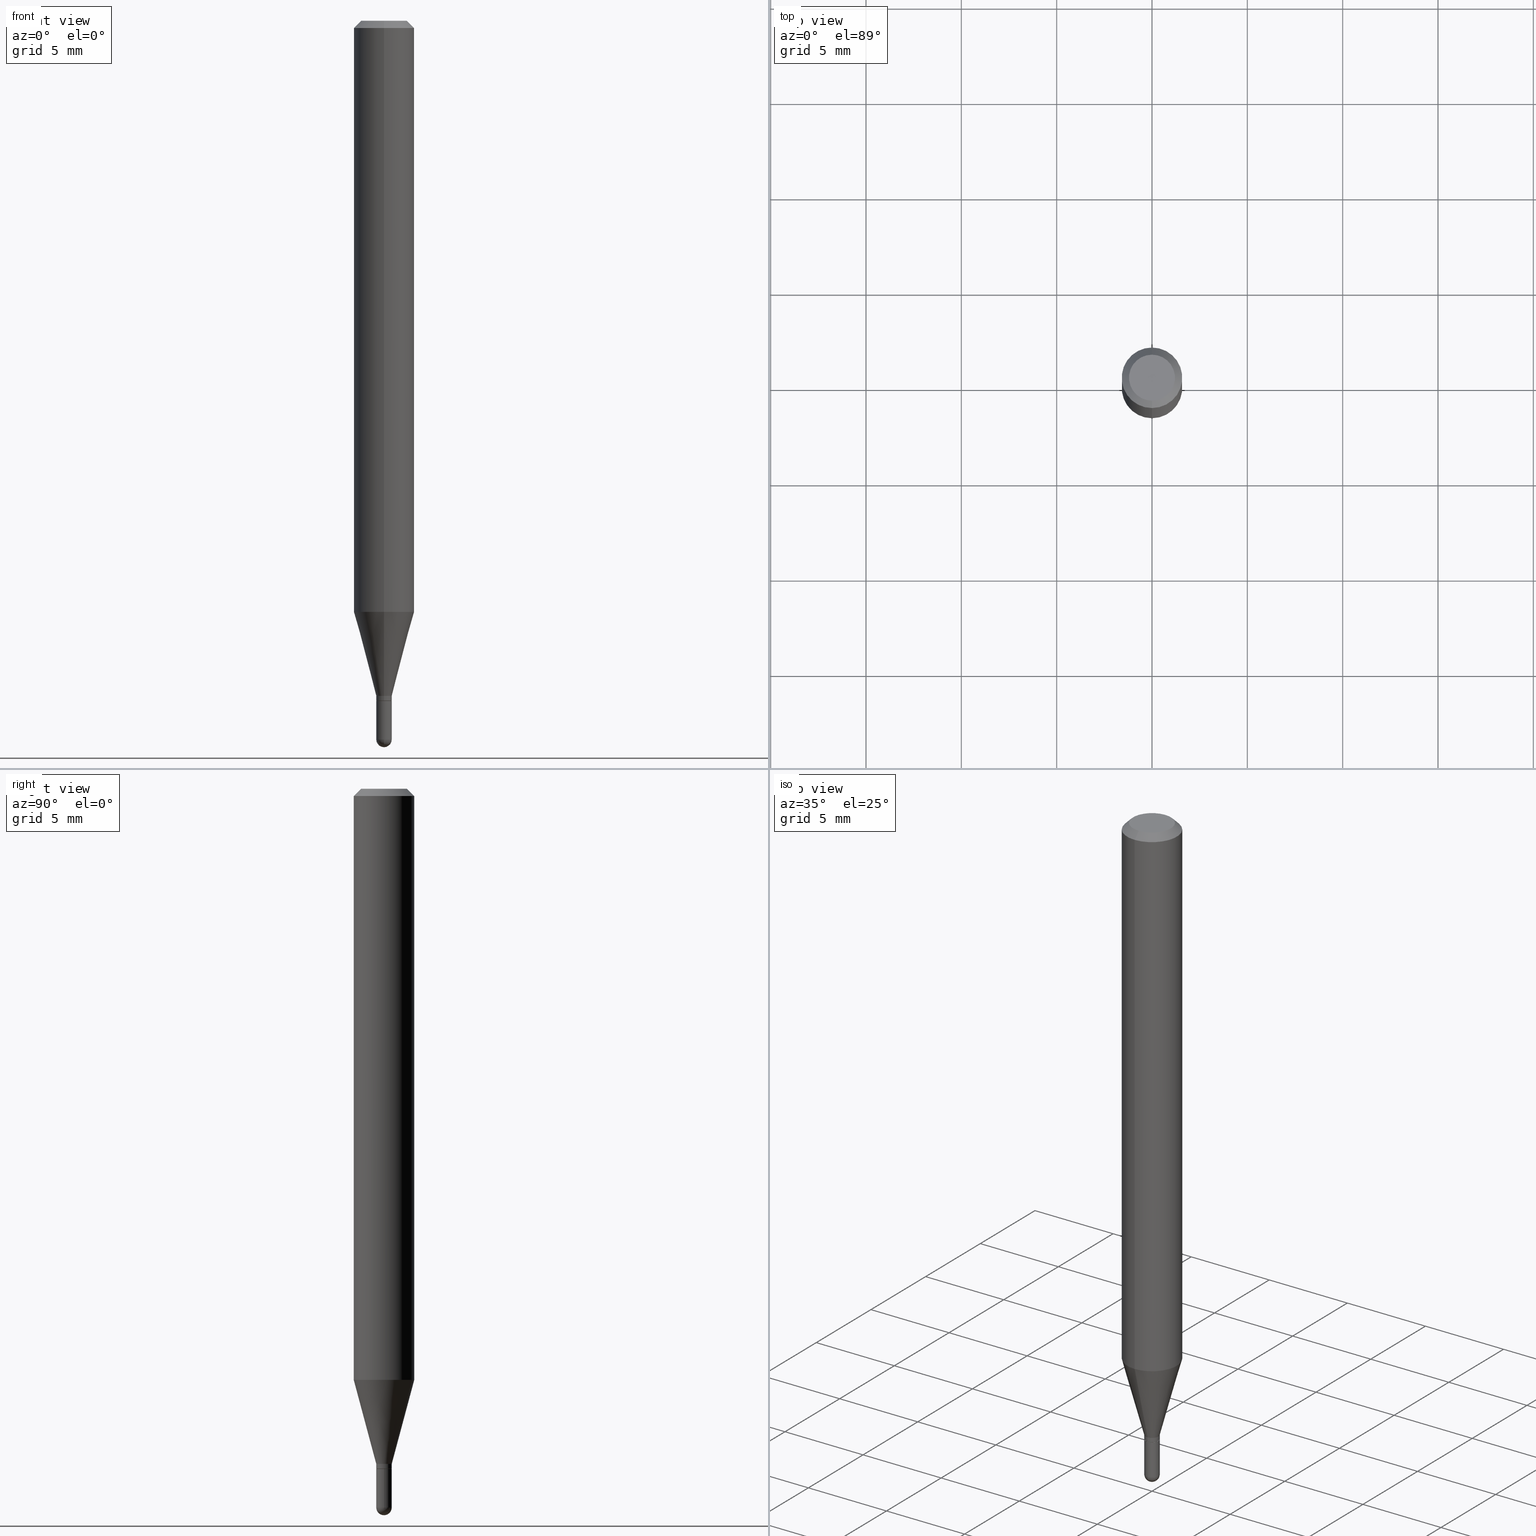
[diagram: canonical four-view strip — front | top / right | iso, engineering-drawing reading convention]
A machine part, canonical four-view strip (front | top / right | iso — engineering-drawing reading convention). The complete STEP part file that produces these views, byte-faithful:
ISO-10303-21;
HEADER;
FILE_DESCRIPTION (( 'STEP AP203' ),
    '1' );
FILE_NAME ('03130.STEP',
    '2024-03-08T18:17:44',
    ( '' ),
    ( '' ),
    'SwSTEP 2.0',
    'SolidWorks 2023',
    '' );
FILE_SCHEMA (( 'CONFIG_CONTROL_DESIGN' ));
ENDSEC;

DATA;
#1 = APPROVAL_PERSON_ORGANIZATION ( #306, #156, #336 ) ;
#2 = DIRECTION ( 'NONE',  ( 5.024295867788190974E-15, 0.7071067811865681119, 0.7071067811865270336 ) ) ;
#3 = CARTESIAN_POINT ( 'NONE',  ( 2.788880237858710265E-16, 0.01599999999999505637, -1.393999999999999906 ) ) ;
#4 = CARTESIAN_POINT ( 'NONE',  ( 3.840629472727447874E-16, 0.04749999999999999362, 7.364327909283752044E-17 ) ) ;
#5 = LINE ( 'NONE', #114, #327 ) ;
#6 = CARTESIAN_POINT ( 'NONE',  ( 3.627707442316055177E-29, -5.183317741721863654E-15, -1.483999999999999986 ) ) ;
#7 = CARTESIAN_POINT ( 'NONE',  ( 3.408965558848193450E-29, -4.867150701755997361E-15, -1.393999999999999906 ) ) ;
#8 = AXIS2_PLACEMENT_3D ( 'NONE', #377, #219, #24 ) ;
#9 = CIRCLE ( 'NONE', #393, 0.06250000000000000000 ) ;
#10 = LOCAL_TIME ( 13, 17, 44.00000000000000000, #40 ) ;
#11 = EDGE_CURVE ( 'NONE', #226, #265, #460, .T. ) ;
#12 = SPHERICAL_SURFACE ( 'NONE', #495, 0.01599999999999988931 ) ;
#13 = DIRECTION ( 'NONE',  ( -2.445455924568288198E-29, 3.491499786051648296E-15, 1.000000000000000000 ) ) ;
#14 = VECTOR ( 'NONE', #60, 39.37007874015748143 ) ;
#15 = EDGE_CURVE ( 'NONE', #151, #256, #176, .T. ) ;
#16 = CONICAL_SURFACE ( 'NONE', #285, 0.06250000000000000000, 0.7853981633974483900 ) ;
#17 = ORIENTED_EDGE ( 'NONE', *, *, #234, .F. ) ;
#18 = VERTEX_POINT ( 'NONE', #385 ) ;
#19 = SHAPE_DEFINITION_REPRESENTATION ( #200, #242 ) ;
#20 = ORIENTED_EDGE ( 'NONE', *, *, #220, .T. ) ;
#21 = EDGE_CURVE ( 'NONE', #389, #174, #505, .T. ) ;
#22 = DIRECTION ( 'NONE',  ( -2.445455924568288198E-29, 3.491499786051648691E-15, 1.000000000000000000 ) ) ;
#23 = ORIENTED_EDGE ( 'NONE', *, *, #395, .T. ) ;
#24 = DIRECTION ( 'NONE',  ( -6.982962677686266711E-15, -1.000000000000000000, 3.491499786051647902E-15 ) ) ;
#25 = AXIS2_PLACEMENT_3D ( 'NONE', #502, #105, #341 ) ;
#26 = LOCAL_TIME ( 13, 17, 44.00000000000000000, #140 ) ;
#27 = CC_DESIGN_PERSON_AND_ORGANIZATION_ASSIGNMENT ( #190, #148, ( #218 ) ) ;
#28 = DATE_TIME_ROLE ( 'creation_date' ) ;
#29 = EDGE_LOOP ( 'NONE', ( #464, #23 ) ) ;
#30 = DIRECTION ( 'NONE',  ( -6.982962677686265922E-15, -1.000000000000000000, 0.000000000000000000 ) ) ;
#31 = ORIENTED_EDGE ( 'NONE', *, *, #143, .F. ) ;
#32 = ORIENTED_EDGE ( 'NONE', *, *, #234, .T. ) ;
#33 = DIRECTION ( 'NONE',  ( -2.445455924568288198E-29, 3.491499786051648296E-15, 1.000000000000000000 ) ) ;
#34 = APPROVAL_ROLE ( '' ) ;
#35 = DIRECTION ( 'NONE',  ( -2.445455924568288198E-29, 3.491499786051648296E-15, 1.000000000000000000 ) ) ;
#36 = ORIENTED_EDGE ( 'NONE', *, *, #355, .F. ) ;
#37 = CARTESIAN_POINT ( 'NONE',  ( 0.000000000000000000, 0.000000000000000000, 0.000000000000000000 ) ) ;
#38 = AXIS2_PLACEMENT_3D ( 'NONE', #425, #437, #72 ) ;
#39 = AXIS2_PLACEMENT_3D ( 'NONE', #312, #233, #157 ) ;
#40 = COORDINATED_UNIVERSAL_TIME_OFFSET ( 5, 0, .BEHIND. ) ;
#41 = PERSON ( 'UNSPECIFIED', 'UNSPECIFIED', 'UNSPECIFIED', ('UNSPECIFIED'), ('UNSPECIFIED'), ('UNSPECIFIED') ) ;
#42 = CARTESIAN_POINT ( 'NONE',  ( -1.117274028429435893E-16, -0.01600000000000512818, -1.483999999999999986 ) ) ;
#43 = DIRECTION ( 'NONE',  ( 1.000000000000000000, -6.982962677686271444E-15, 0.000000000000000000 ) ) ;
#44 = DIRECTION ( 'NONE',  ( 2.445455924568288198E-29, -3.491499786051648296E-15, -1.000000000000000000 ) ) ;
#45 = CONICAL_SURFACE ( 'NONE', #365, 0.01550000000000000162, 0.7853981633974739252 ) ;
#46 = EDGE_CURVE ( 'NONE', #466, #265, #390, .T. ) ;
#47 = DIRECTION ( 'NONE',  ( -2.445455924568288198E-29, 3.491499786051648296E-15, 1.000000000000000000 ) ) ;
#48 = CARTESIAN_POINT ( 'NONE',  ( 3.433420118093876548E-29, -4.902065699616514582E-15, -1.404000000000000137 ) ) ;
#49 = LINE ( 'NONE', #231, #346 ) ;
#50 = CARTESIAN_POINT ( 'NONE',  ( 1.101341240428498558E-16, 0.01549999999999509930, -1.404000000000000137 ) ) ;
#51 = CIRCLE ( 'NONE', #93, 0.01600000000000000033 ) ;
#52 = VECTOR ( 'NONE', #203, 39.37007874015748143 ) ;
#53 = ORIENTED_EDGE ( 'NONE', *, *, #293, .F. ) ;
#54 = ADVANCED_FACE ( 'NONE', ( #262 ), #223, .T. ) ;
#55 = EDGE_LOOP ( 'NONE', ( #62, #254, #210, #138 ) ) ;
#56 = DATE_AND_TIME ( #463, #196 ) ;
#57 = DIRECTION ( 'NONE',  ( -2.445455924568288198E-29, 3.491499786051648296E-15, 1.000000000000000000 ) ) ;
#58 = ORIENTED_EDGE ( 'NONE', *, *, #383, .T. ) ;
#59 = CIRCLE ( 'NONE', #332, 0.01600000000000000033 ) ;
#60 = DIRECTION ( 'NONE',  ( -2.445468806185136877E-29, 3.491481338843145188E-15, 1.000000000000000000 ) ) ;
#61 = EDGE_LOOP ( 'NONE', ( #384, #141, #296, #136 ) ) ;
#62 = ORIENTED_EDGE ( 'NONE', *, *, #468, .F. ) ;
#63 = EDGE_LOOP ( 'NONE', ( #376, #338, #497, #423, #298 ) ) ;
#64 = ORIENTED_EDGE ( 'NONE', *, *, #449, .T. ) ;
#65 = APPROVAL_STATUS ( 'not_yet_approved' ) ;
#66 = CARTESIAN_POINT ( 'NONE',  ( 0.000000000000000000, 0.000000000000000000, 0.000000000000000000 ) ) ;
#67 = VERTEX_POINT ( 'NONE', #297 ) ;
#68 = CYLINDRICAL_SURFACE ( 'NONE', #137, 0.06250000000000000000 ) ;
#69 = CARTESIAN_POINT ( 'NONE',  ( -1.117274028429457833E-16, -0.01600000000000488184, -1.403500000000000192 ) ) ;
#70 = AXIS2_PLACEMENT_3D ( 'NONE', #335, #421, #30 ) ;
#71 = CARTESIAN_POINT ( 'NONE',  ( 3.433438203883931854E-29, -4.902039799735776870E-15, -1.404000000000000137 ) ) ;
#72 = DIRECTION ( 'NONE',  ( -6.982962677686265922E-15, -1.000000000000000000, 4.370956789862821150E-15 ) ) ;
#73 = MANIFOLD_SOLID_BREP ( 'Body-Move/Copy2[1]', #469 ) ;
#74 = DIRECTION ( 'NONE',  ( -2.445455924568288198E-29, 3.491499786051648296E-15, 1.000000000000000000 ) ) ;
#75 = CARTESIAN_POINT ( 'NONE',  ( -4.364351673553618406E-16, -0.06250000000000426048, -1.220459637448047419 ) ) ;
#76 = DIRECTION ( 'NONE',  ( -2.445455924568288198E-29, 3.491499786051648296E-15, 1.000000000000000000 ) ) ;
#77 = VECTOR ( 'NONE', #2, 39.37007874015748143 ) ;
#78 = FACE_OUTER_BOUND ( 'NONE', #424, .T. ) ;
#79 = DIRECTION ( 'NONE',  ( 1.000000000000000000, -6.982962677686271444E-15, 0.000000000000000000 ) ) ;
#80 = DIRECTION ( 'NONE',  ( -6.982962677686264344E-15, -1.000000000000000000, 0.000000000000000000 ) ) ;
#81 = APPROVAL ( #65, 'UNSPECIFIED' ) ;
#82 =( NAMED_UNIT ( * ) SI_UNIT ( $, .STERADIAN. ) SOLID_ANGLE_UNIT ( ) );
#83 = VECTOR ( 'NONE', #356, 39.37007874015748143 ) ;
#84 = CC_DESIGN_SECURITY_CLASSIFICATION ( #315, ( #218 ) ) ;
#85 = CC_DESIGN_APPROVAL ( #156, ( #218 ) ) ;
#86 = EDGE_CURVE ( 'NONE', #187, #18, #422, .T. ) ;
#87 =( CONVERSION_BASED_UNIT ( 'INCH', #166 ) LENGTH_UNIT ( ) NAMED_UNIT ( #188 ) );
#88 = APPROVAL ( #92, 'UNSPECIFIED' ) ;
#89 = APPROVAL_ROLE ( '' ) ;
#90 = ORIENTED_EDGE ( 'NONE', *, *, #398, .F. ) ;
#91 = EDGE_CURVE ( 'NONE', #334, #226, #189, .T. ) ;
#92 = APPROVAL_STATUS ( 'not_yet_approved' ) ;
#93 = AXIS2_PLACEMENT_3D ( 'NONE', #382, #142, #113 ) ;
#94 = ORIENTED_EDGE ( 'NONE', *, *, #135, .T. ) ;
#95 = AXIS2_PLACEMENT_3D ( 'NONE', #118, #232, #274 ) ;
#96 = ORIENTED_EDGE ( 'NONE', *, *, #293, .T. ) ;
#97 = DIRECTION ( 'NONE',  ( 2.438088387897960049E-29, -3.491481338843145188E-15, -1.000000000000000000 ) ) ;
#98 = EDGE_CURVE ( 'NONE', #466, #370, #413, .T. ) ;
#99 = ORIENTED_EDGE ( 'NONE', *, *, #352, .F. ) ;
#100 = COORDINATED_UNIVERSAL_TIME_OFFSET ( 5, 0, .BEHIND. ) ;
#101 = CARTESIAN_POINT ( 'NONE',  ( 1.117274028430145868E-16, 0.01599999999999509800, -1.404000000000000137 ) ) ;
#102 = ORIENTED_EDGE ( 'NONE', *, *, #344, .F. ) ;
#103 = DIRECTION ( 'NONE',  ( -6.982962677686265922E-15, -1.000000000000000000, 3.483106191921935554E-15 ) ) ;
#104 = ORIENTED_EDGE ( 'NONE', *, *, #241, .F. ) ;
#105 = DIRECTION ( 'NONE',  ( -2.445455924568288198E-29, 3.491499786051648296E-15, 1.000000000000000000 ) ) ;
#106 = ORIENTED_EDGE ( 'NONE', *, *, #86, .F. ) ;
#107 = CARTESIAN_POINT ( 'NONE',  ( 4.440892098500920998E-16, 0.06249999999999571176, -1.220459637448047863 ) ) ;
#108 = AXIS2_PLACEMENT_3D ( 'NONE', #441, #47, #359 ) ;
#109 = ADVANCED_FACE ( 'NONE', ( #193 ), #480, .F. ) ;
#110 = ORIENTED_EDGE ( 'NONE', *, *, #11, .F. ) ;
#111 = EDGE_LOOP ( 'NONE', ( #416, #145, #217, #222 ) ) ;
#112 = LINE ( 'NONE', #501, #280 ) ;
#113 = DIRECTION ( 'NONE',  ( 1.000000000000000000, -6.982962677686271444E-15, 0.000000000000000000 ) ) ;
#114 = CARTESIAN_POINT ( 'NONE',  ( 4.364351673553919652E-16, 0.06249999999999995143, -0.01499999999999997863 ) ) ;
#115 = DIRECTION ( 'NONE',  ( -6.982962677686265922E-15, -1.000000000000000000, 3.491499786051648691E-15 ) ) ;
#116 = AXIS2_PLACEMENT_3D ( 'NONE', #48, #199, #400 ) ;
#117 = CARTESIAN_POINT ( 'NONE',  ( -1.082359215041027885E-16, -0.01550000000000490395, -1.404000000000000137 ) ) ;
#118 = CARTESIAN_POINT ( 'NONE',  ( 3.433420118093876548E-29, -4.902065699616514582E-15, -1.404000000000000137 ) ) ;
#119 = CC_DESIGN_PERSON_AND_ORGANIZATION_ASSIGNMENT ( #225, #387, ( #218 ) ) ;
#120 = CARTESIAN_POINT ( 'NONE',  ( 3.627707442316055177E-29, -5.183317741721863654E-15, -1.483999999999999986 ) ) ;
#121 = LINE ( 'NONE', #510, #452 ) ;
#122 = EDGE_CURVE ( 'NONE', #334, #67, #51, .T. ) ;
#123 = CIRCLE ( 'NONE', #25, 0.01550000000000000162 ) ;
#124 = CYLINDRICAL_SURFACE ( 'NONE', #108, 0.06250000000000000000 ) ;
#125 = ORIENTED_EDGE ( 'NONE', *, *, #283, .F. ) ;
#126 = DIRECTION ( 'NONE',  ( 6.982962677686265922E-15, 1.000000000000000000, -3.483106191921935554E-15 ) ) ;
#127 = DIRECTION ( 'NONE',  ( 0.000000000000000000, 0.000000000000000000, 1.000000000000000000 ) ) ;
#128 = APPLICATION_CONTEXT ( 'configuration controlled 3d designs of mechanical parts and assemblies' ) ;
#129 = DIRECTION ( 'NONE',  ( 1.000000000000000000, -6.982962677686265922E-15, 4.883557194083112340E-29 ) ) ;
#130 = CIRCLE ( 'NONE', #216, 0.01599999999999992401 ) ;
#131 = CC_DESIGN_APPROVAL ( #88, ( #315 ) ) ;
#132 = PRODUCT_DEFINITION ( 'UNKNOWN', '', #218, #430 ) ;
#133 = DIRECTION ( 'NONE',  ( -6.982962677686265922E-15, -1.000000000000000000, 0.000000000000000000 ) ) ;
#134 = APPROVAL_DATE_TIME ( #456, #88 ) ;
#135 = EDGE_CURVE ( 'NONE', #224, #462, #392, .T. ) ;
#136 = ORIENTED_EDGE ( 'NONE', *, *, #135, .F. ) ;
#137 = AXIS2_PLACEMENT_3D ( 'NONE', #446, #405, #489 ) ;
#138 = ORIENTED_EDGE ( 'NONE', *, *, #86, .T. ) ;
#139 = DIRECTION ( 'NONE',  ( -2.445468806185136597E-29, 3.491481338843145583E-15, 1.000000000000000000 ) ) ;
#140 = COORDINATED_UNIVERSAL_TIME_OFFSET ( 5, 0, .BEHIND. ) ;
#141 = ORIENTED_EDGE ( 'NONE', *, *, #283, .T. ) ;
#142 = DIRECTION ( 'NONE',  ( -2.445468806185136597E-29, 3.491481338843145583E-15, 1.000000000000000000 ) ) ;
#143 = EDGE_CURVE ( 'NONE', #458, #370, #300, .T. ) ;
#144 = CALENDAR_DATE ( 2024, 8, 3 ) ;
#145 = ORIENTED_EDGE ( 'NONE', *, *, #275, .T. ) ;
#146 = AXIS2_PLACEMENT_3D ( 'NONE', #182, #339, #508 ) ;
#147 = LOCAL_TIME ( 13, 17, 44.00000000000000000, #100 ) ;
#148 = PERSON_AND_ORGANIZATION_ROLE ( 'design_supplier' ) ;
#149 = PRODUCT ( '03130', '03130', '', ( #247 ) ) ;
#150 = DIRECTION ( 'NONE',  ( -6.982962677686264344E-15, -1.000000000000000000, 0.000000000000000000 ) ) ;
#151 = VERTEX_POINT ( 'NONE', #107 ) ;
#152 = FACE_OUTER_BOUND ( 'NONE', #215, .T. ) ;
#153 = SECURITY_CLASSIFICATION_LEVEL ( 'unclassified' ) ;
#154 = EDGE_CURVE ( 'NONE', #465, #175, #112, .T. ) ;
#155 = DIRECTION ( 'NONE',  ( -2.445455924568288198E-29, 3.491499786051648296E-15, 1.000000000000000000 ) ) ;
#156 = APPROVAL ( #180, 'UNSPECIFIED' ) ;
#157 = DIRECTION ( 'NONE',  ( 6.982962677686265922E-15, 1.000000000000000000, -3.491499786051648691E-15 ) ) ;
#158 = DIRECTION ( 'NONE',  ( 2.445455924568288198E-29, -3.491499786051648296E-15, -1.000000000000000000 ) ) ;
#159 = VECTOR ( 'NONE', #447, 39.37007874015748143 ) ;
#160 = LINE ( 'NONE', #50, #77 ) ;
#161 = DIRECTION ( 'NONE',  ( -6.982962677686266711E-15, -1.000000000000000000, 3.491499786051647902E-15 ) ) ;
#162 = DIRECTION ( 'NONE',  ( -2.445468806185136597E-29, 3.491481338843145583E-15, 1.000000000000000000 ) ) ;
#163 = CARTESIAN_POINT ( 'NONE',  ( 0.01600000000000000033, -5.153426456132482850E-15, -1.483999999999999986 ) ) ;
#164 = CARTESIAN_POINT ( 'NONE',  ( 4.440892098500924943E-16, 0.06249999999999993755, -0.01499999999999997863 ) ) ;
#165 =( GEOMETRIC_REPRESENTATION_CONTEXT ( 3 ) GLOBAL_UNCERTAINTY_ASSIGNED_CONTEXT ( ( #228 ) ) GLOBAL_UNIT_ASSIGNED_CONTEXT ( ( #87, #451, #82 ) ) REPRESENTATION_CONTEXT ( 'NONE', 'WORKASPACE' ) );
#166 = LENGTH_MEASURE_WITH_UNIT ( LENGTH_MEASURE( 0.02539999999999999897 ), #249 );
#167 = DIRECTION ( 'NONE',  ( -6.982962677686265922E-15, -1.000000000000000000, 0.000000000000000000 ) ) ;
#168 = ADVANCED_FACE ( 'NONE', ( #152 ), #364, .T. ) ;
#169 = AXIS2_PLACEMENT_3D ( 'NONE', #475, #257, #115 ) ;
#170 = AXIS2_PLACEMENT_3D ( 'NONE', #101, #97, #499 ) ;
#171 = CARTESIAN_POINT ( 'NONE',  ( 0.000000000000000000, 0.000000000000000000, 0.000000000000000000 ) ) ;
#172 = CC_DESIGN_PERSON_AND_ORGANIZATION_ASSIGNMENT ( #243, #412, ( #149 ) ) ;
#173 = EDGE_LOOP ( 'NONE', ( #31, #426, #342, #251 ) ) ;
#174 = VERTEX_POINT ( 'NONE', #433 ) ;
#175 = VERTEX_POINT ( 'NONE', #69 ) ;
#176 = CIRCLE ( 'NONE', #38, 0.06250000000000000000 ) ;
#177 = ORIENTED_EDGE ( 'NONE', *, *, #318, .T. ) ;
#178 = VECTOR ( 'NONE', #268, 39.37007874015748143 ) ;
#179 = ORIENTED_EDGE ( 'NONE', *, *, #398, .T. ) ;
#180 = APPROVAL_STATUS ( 'not_yet_approved' ) ;
#181 = ORIENTED_EDGE ( 'NONE', *, *, #361, .F. ) ;
#182 = CARTESIAN_POINT ( 'NONE',  ( 3.627707442316055177E-29, -5.183317741721863654E-15, -1.483999999999999986 ) ) ;
#183 = ORIENTED_EDGE ( 'NONE', *, *, #318, .F. ) ;
#184 = DATE_AND_TIME ( #379, #147 ) ;
#185 = DIRECTION ( 'NONE',  ( -2.445468806185136597E-29, 3.491481338843145583E-15, 1.000000000000000000 ) ) ;
#186 = ADVANCED_FACE ( 'NONE', ( #491 ), #240, .T. ) ;
#187 = VERTEX_POINT ( 'NONE', #164 ) ;
#188 = DIMENSIONAL_EXPONENTS ( 1.000000000000000000, 0.000000000000000000, 0.000000000000000000, 0.000000000000000000, 0.000000000000000000, 0.000000000000000000, 0.000000000000000000 ) ;
#189 = LINE ( 'NONE', #343, #14 ) ;
#190 = PERSON_AND_ORGANIZATION ( #41, #402 ) ;
#191 = DIRECTION ( 'NONE',  ( -2.445468806185136597E-29, 3.491481338843145583E-15, 1.000000000000000000 ) ) ;
#192 = EDGE_LOOP ( 'NONE', ( #102, #261, #328, #106 ) ) ;
#193 = FACE_OUTER_BOUND ( 'NONE', #373, .T. ) ;
#194 = AXIS2_PLACEMENT_3D ( 'NONE', #431, #260, #150 ) ;
#195 = ADVANCED_FACE ( 'NONE', ( #511 ), #330, .T. ) ;
#196 = LOCAL_TIME ( 13, 17, 44.00000000000000000, #340 ) ;
#197 = PERSON_AND_ORGANIZATION ( #41, #402 ) ;
#198 = FACE_OUTER_BOUND ( 'NONE', #29, .T. ) ;
#199 = DIRECTION ( 'NONE',  ( -2.445455924568288198E-29, 3.491499786051648296E-15, 1.000000000000000000 ) ) ;
#200 = PRODUCT_DEFINITION_SHAPE ( 'NONE', 'NONE',  #132 ) ;
#201 = CARTESIAN_POINT ( 'NONE',  ( -4.287811248607203282E-16, -0.06250000000000005551, -0.01499999999999954321 ) ) ;
#202 = AXIS2_PLACEMENT_3D ( 'NONE', #66, #191, #307 ) ;
#203 = DIRECTION ( 'NONE',  ( -1.807323732225330928E-15, -0.2588190451025182970, 0.9659258262890689783 ) ) ;
#204 = ADVANCED_FACE ( 'NONE', ( #448 ), #357, .T. ) ;
#205 = DIRECTION ( 'NONE',  ( -2.445468806185136597E-29, 3.491481338843145583E-15, 1.000000000000000000 ) ) ;
#206 = DIRECTION ( 'NONE',  ( 1.839019923739601104E-15, 0.2588190451025250693, 0.9659258262890670910 ) ) ;
#207 = EDGE_CURVE ( 'NONE', #370, #334, #59, .T. ) ;
#208 = AXIS2_PLACEMENT_3D ( 'NONE', #273, #403, #161 ) ;
#209 = CALENDAR_DATE ( 2024, 8, 3 ) ;
#210 = ORIENTED_EDGE ( 'NONE', *, *, #445, .T. ) ;
#211 = ORIENTED_EDGE ( 'NONE', *, *, #468, .T. ) ;
#212 = ORIENTED_EDGE ( 'NONE', *, *, #305, .T. ) ;
#213 = PERSON_AND_ORGANIZATION ( #41, #402 ) ;
#214 = CARTESIAN_POINT ( 'NONE',  ( 1.136868377216154651E-16, 0.01599999999999992401, -5.586399657682611320E-17 ) ) ;
#215 = EDGE_LOOP ( 'NONE', ( #90, #94, #417, #308 ) ) ;
#216 = AXIS2_PLACEMENT_3D ( 'NONE', #443, #74, #239 ) ;
#217 = ORIENTED_EDGE ( 'NONE', *, *, #388, .F. ) ;
#218 = PRODUCT_DEFINITION_FORMATION_WITH_SPECIFIED_SOURCE ( 'ANY', '', #149, .NOT_KNOWN. ) ;
#219 = DIRECTION ( 'NONE',  ( -2.445455924568288198E-29, 3.491499786051648296E-15, 1.000000000000000000 ) ) ;
#220 = EDGE_CURVE ( 'NONE', #474, #465, #407, .T. ) ;
#221 = FACE_OUTER_BOUND ( 'NONE', #329, .T. ) ;
#222 = ORIENTED_EDGE ( 'NONE', *, *, #267, .F. ) ;
#223 = CYLINDRICAL_SURFACE ( 'NONE', #481, 0.01599999999999992401 ) ;
#224 = VERTEX_POINT ( 'NONE', #3 ) ;
#225 = PERSON_AND_ORGANIZATION ( #41, #402 ) ;
#226 = VERTEX_POINT ( 'NONE', #397 ) ;
#227 = DIRECTION ( 'NONE',  ( 1.000000000000000000, -6.982962677686271444E-15, 0.000000000000000000 ) ) ;
#228 = UNCERTAINTY_MEASURE_WITH_UNIT (LENGTH_MEASURE( 1.000000000000000082E-05 ), #87, 'distance_accuracy_value', 'NONE');
#229 = PLANE ( 'NONE',  #170 ) ;
#230 = CC_DESIGN_APPROVAL ( #81, ( #132 ) ) ;
#231 = CARTESIAN_POINT ( 'NONE',  ( 1.136868377216495587E-16, 0.01599999999999505637, -1.393999999999999906 ) ) ;
#232 = DIRECTION ( 'NONE',  ( -2.445455924568288198E-29, 3.491499786051648296E-15, 1.000000000000000000 ) ) ;
#233 = DIRECTION ( 'NONE',  ( 2.445455924568287917E-29, -3.491499786051648691E-15, -1.000000000000000000 ) ) ;
#234 = EDGE_CURVE ( 'NONE', #18, #187, #9, .T. ) ;
#235 = DIRECTION ( 'NONE',  ( 1.000000000000000000, -6.982962677686266711E-15, 4.876176775795935793E-29 ) ) ;
#236 = APPROVAL_PERSON_ORGANIZATION ( #213, #81, #34 ) ;
#237 = FACE_OUTER_BOUND ( 'NONE', #248, .T. ) ;
#238 = LINE ( 'NONE', #317, #159 ) ;
#239 = DIRECTION ( 'NONE',  ( -6.982962677686265922E-15, -1.000000000000000000, 0.000000000000000000 ) ) ;
#240 = SPHERICAL_SURFACE ( 'NONE', #434, 0.01599999999999988931 ) ;
#241 = EDGE_CURVE ( 'NONE', #256, #18, #238, .T. ) ;
#242 = ADVANCED_BREP_SHAPE_REPRESENTATION ( '03130', ( #73, #418, #250 ), #165 ) ;
#243 = PERSON_AND_ORGANIZATION ( #41, #402 ) ;
#244 = ADVANCED_FACE ( 'NONE', ( #404 ), #16, .T. ) ;
#245 = AXIS2_PLACEMENT_3D ( 'NONE', #467, #155, #103 ) ;
#246 = CIRCLE ( 'NONE', #369, 0.01600000000000000033 ) ;
#247 = MECHANICAL_CONTEXT ( 'NONE', #128, 'mechanical' ) ;
#248 = EDGE_LOOP ( 'NONE', ( #348, #179, #374, #36 ) ) ;
#249 =( LENGTH_UNIT ( ) NAMED_UNIT ( * ) SI_UNIT ( $, .METRE. ) );
#250 = AXIS2_PLACEMENT_3D ( 'NONE', #324, #127, #371 ) ;
#251 = ORIENTED_EDGE ( 'NONE', *, *, #207, .F. ) ;
#252 = ORIENTED_EDGE ( 'NONE', *, *, #383, .F. ) ;
#253 = APPROVAL_DATE_TIME ( #56, #81 ) ;
#254 = ORIENTED_EDGE ( 'NONE', *, *, #21, .F. ) ;
#255 = CARTESIAN_POINT ( 'NONE',  ( 3.629075708378742535E-29, -5.181358306843227696E-15, -1.483999999999999986 ) ) ;
#256 = VERTEX_POINT ( 'NONE', #75 ) ;
#257 = DIRECTION ( 'NONE',  ( -2.445455924568287917E-29, 3.491499786051648691E-15, 1.000000000000000000 ) ) ;
#258 = DATE_AND_TIME ( #144, #26 ) ;
#259 = AXIS2_PLACEMENT_3D ( 'NONE', #120, #487, #360 ) ;
#260 = DIRECTION ( 'NONE',  ( -2.445455924568288198E-29, 3.491499786051648296E-15, 1.000000000000000000 ) ) ;
#261 = ORIENTED_EDGE ( 'NONE', *, *, #15, .T. ) ;
#262 = FACE_OUTER_BOUND ( 'NONE', #61, .T. ) ;
#263 = EDGE_LOOP ( 'NONE', ( #181, #291, #420, #53 ) ) ;
#264 = CARTESIAN_POINT ( 'NONE',  ( 2.984580251093793523E-29, -4.261234563034530166E-15, -1.220459637448047641 ) ) ;
#265 = VERTEX_POINT ( 'NONE', #409 ) ;
#266 = DIRECTION ( 'NONE',  ( 1.000000000000000000, -6.982962677686271444E-15, 0.000000000000000000 ) ) ;
#267 = EDGE_CURVE ( 'NONE', #175, #462, #288, .T. ) ;
#268 = DIRECTION ( 'NONE',  ( -2.445455924568288198E-29, 3.491499786051648691E-15, 1.000000000000000000 ) ) ;
#269 = CARTESIAN_POINT ( 'NONE',  ( 3.408965558848193450E-29, -4.867150701755997361E-15, -1.393999999999999906 ) ) ;
#270 = FACE_OUTER_BOUND ( 'NONE', #386, .T. ) ;
#271 = CARTESIAN_POINT ( 'NONE',  ( 3.629075708378742535E-29, -5.181358306843227696E-15, -1.483999999999999986 ) ) ;
#272 = AXIS2_PLACEMENT_3D ( 'NONE', #171, #13, #408 ) ;
#273 = CARTESIAN_POINT ( 'NONE',  ( -5.856610629400888588E-45, 8.361776041067224988E-31, 2.394895189302908175E-16 ) ) ;
#274 = DIRECTION ( 'NONE',  ( -6.982962677686265922E-15, -1.000000000000000000, 0.000000000000000000 ) ) ;
#275 = EDGE_CURVE ( 'NONE', #353, #224, #333, .T. ) ;
#276 = CARTESIAN_POINT ( 'NONE',  ( -1.117274028429456354E-16, -0.01600000000000479164, -1.393999999999999906 ) ) ;
#277 = CARTESIAN_POINT ( 'NONE',  ( 3.668183886852373582E-31, -5.237249679077389564E-17, -0.01499999999999976179 ) ) ;
#278 = LINE ( 'NONE', #276, #52 ) ;
#279 = DIRECTION ( 'NONE',  ( -2.445455924568288198E-29, 3.491499786051648296E-15, 1.000000000000000000 ) ) ;
#280 = VECTOR ( 'NONE', #349, 39.37007874015748143 ) ;
#281 = APPROVAL_PERSON_ORGANIZATION ( #415, #88, #89 ) ;
#282 = CYLINDRICAL_SURFACE ( 'NONE', #358, 0.01600000000000000033 ) ;
#283 = EDGE_CURVE ( 'NONE', #353, #175, #482, .T. ) ;
#284 = CYLINDRICAL_SURFACE ( 'NONE', #272, 0.01599999999999992401 ) ;
#285 = AXIS2_PLACEMENT_3D ( 'NONE', #440, #44, #126 ) ;
#286 = ADVANCED_FACE ( 'NONE', ( #221 ), #229, .F. ) ;
#287 = DIRECTION ( 'NONE',  ( 1.000000000000000000, -6.982962677686265922E-15, 4.883557194083112340E-29 ) ) ;
#288 = LINE ( 'NONE', #457, #292 ) ;
#289 = CC_DESIGN_PERSON_AND_ORGANIZATION_ASSIGNMENT ( #197, #391, ( #315 ) ) ;
#290 = APPLICATION_PROTOCOL_DEFINITION ( 'international standard', 'config_control_design', 1994, #128 ) ;
#291 = ORIENTED_EDGE ( 'NONE', *, *, #143, .T. ) ;
#292 = VECTOR ( 'NONE', #22, 39.37007874015748143 ) ;
#293 = EDGE_CURVE ( 'NONE', #67, #466, #246, .T. ) ;
#294 = ORIENTED_EDGE ( 'NONE', *, *, #122, .T. ) ;
#295 = ADVANCED_FACE ( 'NONE', ( #347 ), #45, .T. ) ;
#296 = ORIENTED_EDGE ( 'NONE', *, *, #267, .T. ) ;
#297 = CARTESIAN_POINT ( 'NONE',  ( 1.136868377216519253E-16, 0.01599999999999476494, -1.483999999999999986 ) ) ;
#298 = ORIENTED_EDGE ( 'NONE', *, *, #449, .F. ) ;
#299 = CARTESIAN_POINT ( 'NONE',  ( 3.433438203883931854E-29, -4.902039799735776870E-15, -1.404000000000000137 ) ) ;
#300 = CIRCLE ( 'NONE', #146, 0.01599999999999988931 ) ;
#301 = CIRCLE ( 'NONE', #461, 0.01599999999999992747 ) ;
#302 = CARTESIAN_POINT ( 'NONE',  ( 3.433420118093876548E-29, -4.902065699616514582E-15, -1.404000000000000137 ) ) ;
#303 = ORIENTED_EDGE ( 'NONE', *, *, #220, .F. ) ;
#304 = ORIENTED_EDGE ( 'NONE', *, *, #395, .F. ) ;
#305 = EDGE_CURVE ( 'NONE', #256, #151, #506, .T. ) ;
#306 = PERSON_AND_ORGANIZATION ( #41, #402 ) ;
#307 = DIRECTION ( 'NONE',  ( 1.000000000000000000, -6.982962677686266711E-15, 4.876176775795935793E-29 ) ) ;
#308 = ORIENTED_EDGE ( 'NONE', *, *, #15, .F. ) ;
#309 = DIRECTION ( 'NONE',  ( -6.982962677686265922E-15, -1.000000000000000000, 0.000000000000000000 ) ) ;
#310 = CARTESIAN_POINT ( 'NONE',  ( 3.432197390131593177E-29, -4.900319949723489194E-15, -1.403500000000000192 ) ) ;
#311 = DIRECTION ( 'NONE',  ( -2.445468806185136597E-29, 3.491481338843145583E-15, 1.000000000000000000 ) ) ;
#312 = CARTESIAN_POINT ( 'NONE',  ( 3.316907271900976096E-16, 0.04749999999999999362, -4.610148037230788213E-17 ) ) ;
#313 = CIRCLE ( 'NONE', #322, 0.01600000000000000033 ) ;
#314 = AXIS2_PLACEMENT_3D ( 'NONE', #264, #35, #470 ) ;
#315 = SECURITY_CLASSIFICATION ( '', '', #153 ) ;
#316 = CARTESIAN_POINT ( 'NONE',  ( 1.119104808822498490E-16, 0.01549999999999509930, -1.404000000000000137 ) ) ;
#317 = CARTESIAN_POINT ( 'NONE',  ( -4.364351673553916201E-16, -0.06250000000000000000, 2.182187366282280185E-16 ) ) ;
#318 = EDGE_CURVE ( 'NONE', #465, #474, #123, .T. ) ;
#319 = CARTESIAN_POINT ( 'NONE',  ( 1.136868377216494354E-16, 0.01599999999999496963, -1.403500000000000192 ) ) ;
#320 = CARTESIAN_POINT ( 'NONE',  ( 3.668183886852373582E-31, -5.237249679077389564E-17, -0.01499999999999976179 ) ) ;
#321 = DIRECTION ( 'NONE',  ( -2.445455924568288198E-29, 3.491499786051648691E-15, 1.000000000000000000 ) ) ;
#322 = AXIS2_PLACEMENT_3D ( 'NONE', #71, #396, #43 ) ;
#323 = ADVANCED_FACE ( 'NONE', ( #473 ), #428, .T. ) ;
#324 = CARTESIAN_POINT ( 'NONE',  ( 0.000000000000000000, 0.000000000000000000, 0.000000000000000000 ) ) ;
#325 = ADVANCED_FACE ( 'NONE', ( #476 ), #68, .T. ) ;
#326 = AXIS2_PLACEMENT_3D ( 'NONE', #271, #311, #266 ) ;
#327 = VECTOR ( 'NONE', #436, 39.37007874015748143 ) ;
#328 = ORIENTED_EDGE ( 'NONE', *, *, #241, .T. ) ;
#329 = EDGE_LOOP ( 'NONE', ( #484, #64 ) ) ;
#330 = CONICAL_SURFACE ( 'NONE', #512, 0.06250000000000000000, 0.7853981633974483900 ) ;
#331 = CC_DESIGN_DATE_AND_TIME_ASSIGNMENT ( #184, #28, ( #132 ) ) ;
#332 = AXIS2_PLACEMENT_3D ( 'NONE', #442, #162, #79 ) ;
#333 = LINE ( 'NONE', #214, #178 ) ;
#334 = VERTEX_POINT ( 'NONE', #163 ) ;
#335 = CARTESIAN_POINT ( 'NONE',  ( 3.408965558848193450E-29, -4.867150701755997361E-15, -1.393999999999999906 ) ) ;
#336 = APPROVAL_ROLE ( '' ) ;
#337 = DIRECTION ( 'NONE',  ( -6.982962677686265922E-15, -1.000000000000000000, 0.000000000000000000 ) ) ;
#338 = ORIENTED_EDGE ( 'NONE', *, *, #98, .T. ) ;
#339 = DIRECTION ( 'NONE',  ( -1.000000000000000000, 6.982962677686265922E-15, -4.883557194083112340E-29 ) ) ;
#340 = COORDINATED_UNIVERSAL_TIME_OFFSET ( 5, 0, .BEHIND. ) ;
#341 = DIRECTION ( 'NONE',  ( -6.982962677686265922E-15, -1.000000000000000000, 0.000000000000000000 ) ) ;
#342 = ORIENTED_EDGE ( 'NONE', *, *, #122, .F. ) ;
#343 = CARTESIAN_POINT ( 'NONE',  ( 0.01600000000000000033, -1.117274028429802713E-16, 7.801882841273497199E-31 ) ) ;
#344 = EDGE_CURVE ( 'NONE', #151, #187, #121, .T. ) ;
#345 = VECTOR ( 'NONE', #477, 39.37007874015748143 ) ;
#346 = VECTOR ( 'NONE', #206, 39.37007874015748143 ) ;
#347 = FACE_OUTER_BOUND ( 'NONE', #411, .T. ) ;
#348 = ORIENTED_EDGE ( 'NONE', *, *, #388, .T. ) ;
#349 = DIRECTION ( 'NONE',  ( -4.937700262164674260E-15, -0.7071067811865632269, 0.7071067811865319186 ) ) ;
#350 = ADVANCED_FACE ( 'NONE', ( #270 ), #124, .T. ) ;
#351 = CALENDAR_DATE ( 2024, 8, 3 ) ;
#352 = EDGE_CURVE ( 'NONE', #175, #353, #301, .T. ) ;
#353 = VERTEX_POINT ( 'NONE', #319 ) ;
#354 = PLANE ( 'NONE',  #39 ) ;
#355 = EDGE_CURVE ( 'NONE', #462, #256, #278, .T. ) ;
#356 = DIRECTION ( 'NONE',  ( -4.851104656540964275E-15, -0.7071067811865500152, -0.7071067811865450192 ) ) ;
#357 = CONICAL_SURFACE ( 'NONE', #116, 0.01550000000000000162, 0.7853981633974739252 ) ;
#358 = AXIS2_PLACEMENT_3D ( 'NONE', #362, #205, #235 ) ;
#359 = DIRECTION ( 'NONE',  ( -6.982962677686265922E-15, -1.000000000000000000, 3.491499786051648296E-15 ) ) ;
#360 = DIRECTION ( 'NONE',  ( 7.105427357601001859E-15, 1.000000000000000000, 0.000000000000000000 ) ) ;
#361 = EDGE_CURVE ( 'NONE', #458, #67, #493, .T. ) ;
#362 = CARTESIAN_POINT ( 'NONE',  ( 0.000000000000000000, 0.000000000000000000, 0.000000000000000000 ) ) ;
#363 = DIRECTION ( 'NONE',  ( 6.982962677686265922E-15, 1.000000000000000000, -3.483106191921935554E-15 ) ) ;
#364 = CONICAL_SURFACE ( 'NONE', #378, 0.01599999999999992401, 0.2617993877991502960 ) ;
#365 = AXIS2_PLACEMENT_3D ( 'NONE', #302, #57, #337 ) ;
#366 = FACE_OUTER_BOUND ( 'NONE', #111, .T. ) ;
#367 = DATE_TIME_ROLE ( 'classification_date' ) ;
#368 = PRODUCT_RELATED_PRODUCT_CATEGORY ( 'detail', '', ( #149 ) ) ;
#369 = AXIS2_PLACEMENT_3D ( 'NONE', #255, #185, #419 ) ;
#370 = VERTEX_POINT ( 'NONE', #42 ) ;
#371 = DIRECTION ( 'NONE',  ( 1.000000000000000000, 0.000000000000000000, 0.000000000000000000 ) ) ;
#372 = COORDINATED_UNIVERSAL_TIME_OFFSET ( 5, 0, .BEHIND. ) ;
#373 = EDGE_LOOP ( 'NONE', ( #183, #303 ) ) ;
#374 = ORIENTED_EDGE ( 'NONE', *, *, #305, .F. ) ;
#375 = PERSON_AND_ORGANIZATION_ROLE ( 'creator' ) ;
#376 = ORIENTED_EDGE ( 'NONE', *, *, #46, .F. ) ;
#377 = CARTESIAN_POINT ( 'NONE',  ( -5.856610629400888588E-45, 8.361776041067224988E-31, 2.394895189302908175E-16 ) ) ;
#378 = AXIS2_PLACEMENT_3D ( 'NONE', #269, #472, #309 ) ;
#379 = CALENDAR_DATE ( 2024, 8, 3 ) ;
#380 = LOCAL_TIME ( 13, 17, 44.00000000000000000, #372 ) ;
#381 = EDGE_LOOP ( 'NONE', ( #304, #211, #32, #498 ) ) ;
#382 = CARTESIAN_POINT ( 'NONE',  ( 3.629075708378742535E-29, -5.181358306843227696E-15, -1.483999999999999986 ) ) ;
#383 = EDGE_CURVE ( 'NONE', #474, #353, #160, .T. ) ;
#384 = ORIENTED_EDGE ( 'NONE', *, *, #275, .F. ) ;
#385 = CARTESIAN_POINT ( 'NONE',  ( -4.364351673553912750E-16, -0.06250000000000005551, -0.01499999999999954321 ) ) ;
#386 = EDGE_LOOP ( 'NONE', ( #212, #429, #17, #104 ) ) ;
#387 = PERSON_AND_ORGANIZATION_ROLE ( 'creator' ) ;
#388 = EDGE_CURVE ( 'NONE', #462, #224, #130, .T. ) ;
#389 = VERTEX_POINT ( 'NONE', #4 ) ;
#390 = LINE ( 'NONE', #394, #345 ) ;
#391 = PERSON_AND_ORGANIZATION_ROLE ( 'classification_officer' ) ;
#392 = CIRCLE ( 'NONE', #70, 0.01599999999999992401 ) ;
#393 = AXIS2_PLACEMENT_3D ( 'NONE', #320, #279, #444 ) ;
#394 = CARTESIAN_POINT ( 'NONE',  ( -0.01600000000000000033, 1.136868377216160321E-16, -7.870296144407849335E-31 ) ) ;
#395 = EDGE_CURVE ( 'NONE', #174, #389, #490, .T. ) ;
#396 = DIRECTION ( 'NONE',  ( -2.445468806185136597E-29, 3.491481338843145583E-15, 1.000000000000000000 ) ) ;
#397 = CARTESIAN_POINT ( 'NONE',  ( 0.01600000000000000033, -5.013767202578757042E-15, -1.404000000000000137 ) ) ;
#398 = EDGE_CURVE ( 'NONE', #224, #151, #49, .T. ) ;
#399 = DIRECTION ( 'NONE',  ( -6.982962677686265922E-15, -1.000000000000000000, 0.000000000000000000 ) ) ;
#400 = DIRECTION ( 'NONE',  ( -6.982962677686265922E-15, -1.000000000000000000, 0.000000000000000000 ) ) ;
#401 = CARTESIAN_POINT ( 'NONE',  ( -0.01600000000000000033, -4.928012215567885758E-15, -1.483999999999999986 ) ) ;
#402 = ORGANIZATION ( 'UNSPECIFIED', 'UNSPECIFIED', '' ) ;
#403 = DIRECTION ( 'NONE',  ( -2.445455924568288198E-29, 3.491499786051648296E-15, 1.000000000000000000 ) ) ;
#404 = FACE_OUTER_BOUND ( 'NONE', #55, .T. ) ;
#405 = DIRECTION ( 'NONE',  ( -2.445455924568288198E-29, 3.491499786051648296E-15, 1.000000000000000000 ) ) ;
#406 = AXIS2_PLACEMENT_3D ( 'NONE', #299, #139, #227 ) ;
#407 = CIRCLE ( 'NONE', #95, 0.01550000000000000162 ) ;
#408 = DIRECTION ( 'NONE',  ( -6.982962677686265922E-15, -1.000000000000000000, 3.491499786051648691E-15 ) ) ;
#409 = CARTESIAN_POINT ( 'NONE',  ( -0.01600000000000000033, -4.928012215567885758E-15, -1.404000000000000137 ) ) ;
#410 = ADVANCED_FACE ( 'NONE', ( #78 ), #282, .T. ) ;
#411 = EDGE_LOOP ( 'NONE', ( #177, #58, #99, #503 ) ) ;
#412 = PERSON_AND_ORGANIZATION_ROLE ( 'design_owner' ) ;
#413 = CIRCLE ( 'NONE', #326, 0.01600000000000000033 ) ;
#414 = AXIS2_PLACEMENT_3D ( 'NONE', #7, #479, #399 ) ;
#415 = PERSON_AND_ORGANIZATION ( #41, #402 ) ;
#416 = ORIENTED_EDGE ( 'NONE', *, *, #352, .T. ) ;
#417 = ORIENTED_EDGE ( 'NONE', *, *, #355, .T. ) ;
#418 = MANIFOLD_SOLID_BREP ( 'Body-Move/Copy2[2]', #488 ) ;
#419 = DIRECTION ( 'NONE',  ( 1.000000000000000000, -6.982962677686271444E-15, 0.000000000000000000 ) ) ;
#420 = ORIENTED_EDGE ( 'NONE', *, *, #98, .F. ) ;
#421 = DIRECTION ( 'NONE',  ( -2.445455924568288198E-29, 3.491499786051648296E-15, 1.000000000000000000 ) ) ;
#422 = CIRCLE ( 'NONE', #245, 0.06250000000000000000 ) ;
#423 = ORIENTED_EDGE ( 'NONE', *, *, #91, .T. ) ;
#424 = EDGE_LOOP ( 'NONE', ( #96, #471, #110, #494, #294 ) ) ;
#425 = CARTESIAN_POINT ( 'NONE',  ( 2.984580251093793523E-29, -4.261234563034530166E-15, -1.220459637448047641 ) ) ;
#426 = ORIENTED_EDGE ( 'NONE', *, *, #361, .T. ) ;
#427 = APPROVAL_DATE_TIME ( #258, #156 ) ;
#428 = CYLINDRICAL_SURFACE ( 'NONE', #202, 0.01600000000000000033 ) ;
#429 = ORIENTED_EDGE ( 'NONE', *, *, #344, .T. ) ;
#430 = DESIGN_CONTEXT ( 'detailed design', #450, 'design' ) ;
#431 = CARTESIAN_POINT ( 'NONE',  ( 3.432197390131593177E-29, -4.900319949723489194E-15, -1.403500000000000192 ) ) ;
#432 = ADVANCED_FACE ( 'NONE', ( #237 ), #435, .T. ) ;
#433 = CARTESIAN_POINT ( 'NONE',  ( -3.773273898774340269E-16, -0.04749999999999999362, 4.053357587677440159E-16 ) ) ;
#434 = AXIS2_PLACEMENT_3D ( 'NONE', #6, #129, #167 ) ;
#435 = CONICAL_SURFACE ( 'NONE', #414, 0.01599999999999992401, 0.2617993877991502960 ) ;
#436 = DIRECTION ( 'NONE',  ( 4.937700262164548042E-15, 0.7071067811865451302, -0.7071067811865499042 ) ) ;
#437 = DIRECTION ( 'NONE',  ( -2.445455924568288198E-29, 3.491499786051648296E-15, 1.000000000000000000 ) ) ;
#438 = CC_DESIGN_PERSON_AND_ORGANIZATION_ASSIGNMENT ( #496, #375, ( #132 ) ) ;
#439 = LINE ( 'NONE', #201, #83 ) ;
#440 = CARTESIAN_POINT ( 'NONE',  ( 3.668183886852373582E-31, -5.237249679077389564E-17, -0.01499999999999976179 ) ) ;
#441 = CARTESIAN_POINT ( 'NONE',  ( 0.000000000000000000, 0.000000000000000000, 0.000000000000000000 ) ) ;
#442 = CARTESIAN_POINT ( 'NONE',  ( 3.629075708378742535E-29, -5.181358306843227696E-15, -1.483999999999999986 ) ) ;
#443 = CARTESIAN_POINT ( 'NONE',  ( 3.408965558848193450E-29, -4.867150701755997361E-15, -1.393999999999999906 ) ) ;
#444 = DIRECTION ( 'NONE',  ( -6.982962677686265922E-15, -1.000000000000000000, 3.483106191921935554E-15 ) ) ;
#445 = EDGE_CURVE ( 'NONE', #389, #187, #5, .T. ) ;
#446 = CARTESIAN_POINT ( 'NONE',  ( 0.000000000000000000, 0.000000000000000000, 0.000000000000000000 ) ) ;
#447 = DIRECTION ( 'NONE',  ( -2.445455924568288198E-29, 3.491499786051648691E-15, 1.000000000000000000 ) ) ;
#448 = FACE_OUTER_BOUND ( 'NONE', #507, .T. ) ;
#449 = EDGE_CURVE ( 'NONE', #265, #226, #313, .T. ) ;
#450 = APPLICATION_CONTEXT ( 'configuration controlled 3d designs of mechanical parts and assemblies' ) ;
#451 =( NAMED_UNIT ( * ) PLANE_ANGLE_UNIT ( ) SI_UNIT ( $, .RADIAN. ) );
#452 = VECTOR ( 'NONE', #321, 39.37007874015748143 ) ;
#453 = CC_DESIGN_DATE_AND_TIME_ASSIGNMENT ( #509, #367, ( #315 ) ) ;
#454 = FACE_OUTER_BOUND ( 'NONE', #263, .T. ) ;
#455 = ADVANCED_FACE ( 'NONE', ( #198 ), #354, .F. ) ;
#456 = DATE_AND_TIME ( #209, #380 ) ;
#457 = CARTESIAN_POINT ( 'NONE',  ( -1.117274028429797290E-16, -0.01599999999999992401, 5.586399657682611320E-17 ) ) ;
#458 = VERTEX_POINT ( 'NONE', #483 ) ;
#459 = APPLICATION_PROTOCOL_DEFINITION ( 'international standard', 'config_control_design', 1994, #450 ) ;
#460 = CIRCLE ( 'NONE', #406, 0.01600000000000000033 ) ;
#461 = AXIS2_PLACEMENT_3D ( 'NONE', #310, #76, #80 ) ;
#462 = VERTEX_POINT ( 'NONE', #485 ) ;
#463 = CALENDAR_DATE ( 2024, 8, 3 ) ;
#464 = ORIENTED_EDGE ( 'NONE', *, *, #21, .T. ) ;
#465 = VERTEX_POINT ( 'NONE', #117 ) ;
#466 = VERTEX_POINT ( 'NONE', #401 ) ;
#467 = CARTESIAN_POINT ( 'NONE',  ( 3.668183886852373582E-31, -5.237249679077389564E-17, -0.01499999999999976179 ) ) ;
#468 = EDGE_CURVE ( 'NONE', #174, #18, #439, .T. ) ;
#469 = CLOSED_SHELL ( 'NONE', ( #410, #186, #286, #478, #323 ) ) ;
#470 = DIRECTION ( 'NONE',  ( -6.982962677686265922E-15, -1.000000000000000000, 4.370956789862821150E-15 ) ) ;
#471 = ORIENTED_EDGE ( 'NONE', *, *, #46, .T. ) ;
#472 = DIRECTION ( 'NONE',  ( -2.445455924568288198E-29, 3.491499786051648296E-15, 1.000000000000000000 ) ) ;
#473 = FACE_OUTER_BOUND ( 'NONE', #63, .T. ) ;
#474 = VERTEX_POINT ( 'NONE', #316 ) ;
#475 = CARTESIAN_POINT ( 'NONE',  ( 3.433420118093876548E-29, -4.902065699616514582E-15, -1.404000000000000137 ) ) ;
#476 = FACE_OUTER_BOUND ( 'NONE', #192, .T. ) ;
#477 = DIRECTION ( 'NONE',  ( -2.445468806185136877E-29, 3.491481338843145188E-15, 1.000000000000000000 ) ) ;
#478 = ADVANCED_FACE ( 'NONE', ( #454 ), #12, .T. ) ;
#479 = DIRECTION ( 'NONE',  ( -2.445455924568288198E-29, 3.491499786051648296E-15, 1.000000000000000000 ) ) ;
#480 = PLANE ( 'NONE',  #169 ) ;
#481 = AXIS2_PLACEMENT_3D ( 'NONE', #37, #33, #504 ) ;
#482 = CIRCLE ( 'NONE', #194, 0.01599999999999992747 ) ;
#483 = CARTESIAN_POINT ( 'NONE',  ( 3.666150810183673578E-29, -5.240161160582671719E-15, -1.499999999999999778 ) ) ;
#484 = ORIENTED_EDGE ( 'NONE', *, *, #11, .T. ) ;
#485 = CARTESIAN_POINT ( 'NONE',  ( -1.117274028429456354E-16, -0.01600000000000479164, -1.393999999999999906 ) ) ;
#486 = ADVANCED_FACE ( 'NONE', ( #366 ), #284, .T. ) ;
#487 = DIRECTION ( 'NONE',  ( 1.000000000000000000, -7.105427357601001070E-15, 4.926315508542082329E-29 ) ) ;
#488 = CLOSED_SHELL ( 'NONE', ( #486, #295, #195, #350, #432, #168, #325, #244, #455, #109, #204, #54 ) ) ;
#489 = DIRECTION ( 'NONE',  ( -6.982962677686265922E-15, -1.000000000000000000, 3.491499786051648296E-15 ) ) ;
#490 = CIRCLE ( 'NONE', #208, 0.04749999999999999362 ) ;
#491 = FACE_OUTER_BOUND ( 'NONE', #173, .T. ) ;
#492 = CARTESIAN_POINT ( 'NONE',  ( 3.627707442316055177E-29, -5.183317741721863654E-15, -1.483999999999999986 ) ) ;
#493 = CIRCLE ( 'NONE', #259, 0.01599999999999988931 ) ;
#494 = ORIENTED_EDGE ( 'NONE', *, *, #91, .F. ) ;
#495 = AXIS2_PLACEMENT_3D ( 'NONE', #492, #287, #133 ) ;
#496 = PERSON_AND_ORGANIZATION ( #41, #402 ) ;
#497 = ORIENTED_EDGE ( 'NONE', *, *, #207, .T. ) ;
#498 = ORIENTED_EDGE ( 'NONE', *, *, #445, .F. ) ;
#499 = DIRECTION ( 'NONE',  ( -1.000000000000000000, 6.982962677686265922E-15, -4.876176775795935793E-29 ) ) ;
#500 = ORIENTED_EDGE ( 'NONE', *, *, #154, .T. ) ;
#501 = CARTESIAN_POINT ( 'NONE',  ( -1.082359215041027885E-16, -0.01550000000000490395, -1.404000000000000137 ) ) ;
#502 = CARTESIAN_POINT ( 'NONE',  ( 3.433420118093876548E-29, -4.902065699616514582E-15, -1.404000000000000137 ) ) ;
#503 = ORIENTED_EDGE ( 'NONE', *, *, #154, .F. ) ;
#504 = DIRECTION ( 'NONE',  ( -6.982962677686265922E-15, -1.000000000000000000, 3.491499786051648691E-15 ) ) ;
#505 = CIRCLE ( 'NONE', #8, 0.04749999999999999362 ) ;
#506 = CIRCLE ( 'NONE', #314, 0.06250000000000000000 ) ;
#507 = EDGE_LOOP ( 'NONE', ( #252, #20, #500, #125 ) ) ;
#508 = DIRECTION ( 'NONE',  ( -6.982962677686265922E-15, -1.000000000000000000, 0.000000000000000000 ) ) ;
#509 = DATE_AND_TIME ( #351, #10 ) ;
#510 = CARTESIAN_POINT ( 'NONE',  ( 4.440892098500625669E-16, 0.06250000000000000000, -2.182187366282280185E-16 ) ) ;
#511 = FACE_OUTER_BOUND ( 'NONE', #381, .T. ) ;
#512 = AXIS2_PLACEMENT_3D ( 'NONE', #277, #158, #363 ) ;
ENDSEC;
END-ISO-10303-21;
